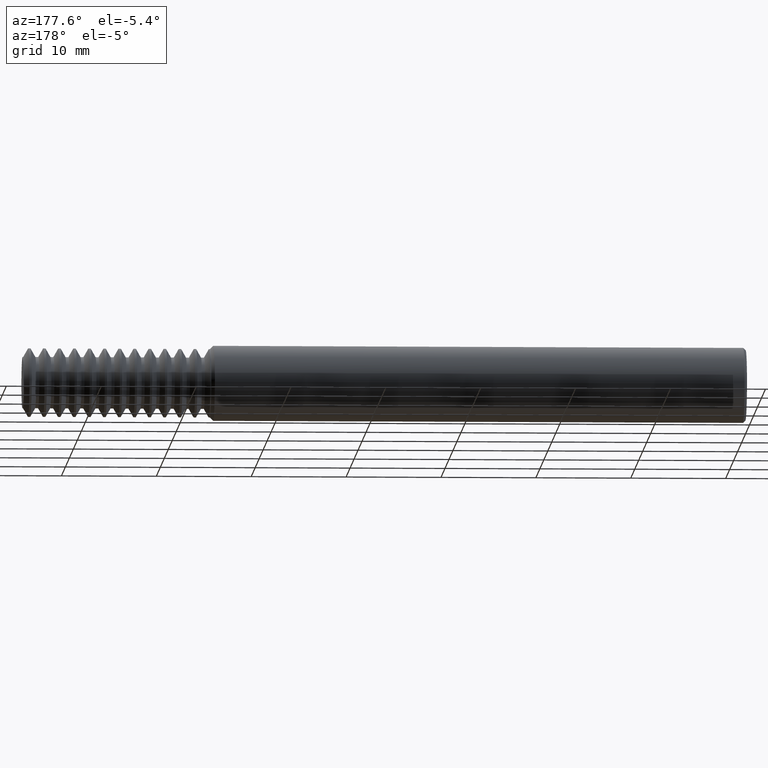
[diagram: clean part render]
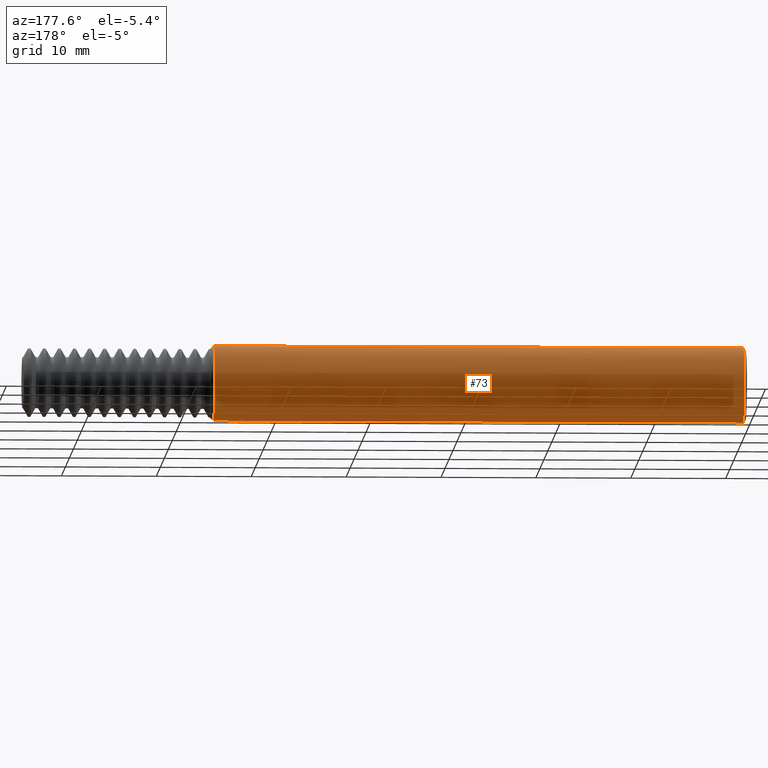
[diagram: same view with one face highlighted and labeled with its STEP entity id]
A machine part, auxiliary view. The second image highlights one B-rep face of the part: STEP entity #73.
In plain terms, the highlighted cylindrical surface (partial cylindrical patch) has radius 3.9649 mm, axis along (1, -0, -0).
Its self-contained STEP definition (entity closure, byte-faithful):
#19 = DIRECTION ( 'NONE',  ( 1.000000000000000000, -0.000000000000000000, -0.000000000000000000 ) ) ;
#73 = ADVANCED_FACE ( 'NONE', ( #1294 ), #448, .T. ) ;
#87 = EDGE_CURVE ( 'NONE', #390, #1171, #2182, .T. ) ;
#108 = DIRECTION ( 'NONE',  ( 0.000000000000000000, 0.000000000000000000, 1.000000000000000000 ) ) ;
#129 = VERTEX_POINT ( 'NONE', #2728 ) ;
#168 = DIRECTION ( 'NONE',  ( 1.000000000000000000, -0.000000000000000000, -0.000000000000000000 ) ) ;
#390 = VERTEX_POINT ( 'NONE', #687 ) ;
#448 = CYLINDRICAL_SURFACE ( 'NONE', #2304, 0.1560999999999999888 ) ;
#687 = CARTESIAN_POINT ( 'NONE',  ( 0.01000000000000071318, 0.000000000000000000, -0.1560999999999999888 ) ) ;
#819 = DIRECTION ( 'NONE',  ( 1.000000000000000000, -0.000000000000000000, -0.000000000000000000 ) ) ;
#834 = CIRCLE ( 'NONE', #2340, 0.1560999999999999888 ) ;
#851 = CARTESIAN_POINT ( 'NONE',  ( 2.208400000000000141, 0.000000000000000000, 0.000000000000000000 ) ) ;
#901 = CARTESIAN_POINT ( 'NONE',  ( 3.000000000000000444, 1.911673653469018068E-17, 0.1560999999999999888 ) ) ;
#950 = CARTESIAN_POINT ( 'NONE',  ( 0.01000000000000071318, 0.000000000000000000, 0.000000000000000000 ) ) ;
#957 = ORIENTED_EDGE ( 'NONE', *, *, #2618, .T. ) ;
#1171 = VERTEX_POINT ( 'NONE', #2522 ) ;
#1177 = DIRECTION ( 'NONE',  ( 1.000000000000000000, -0.000000000000000000, -0.000000000000000000 ) ) ;
#1235 = ORIENTED_EDGE ( 'NONE', *, *, #1956, .F. ) ;
#1294 = FACE_OUTER_BOUND ( 'NONE', #1349, .T. ) ;
#1310 = DIRECTION ( 'NONE',  ( 0.000000000000000000, 0.000000000000000000, -1.000000000000000000 ) ) ;
#1349 = EDGE_LOOP ( 'NONE', ( #957, #1456, #1235, #1719 ) ) ;
#1381 = CARTESIAN_POINT ( 'NONE',  ( 2.208400000000000141, 1.911673653469018068E-17, 0.1560999999999999888 ) ) ;
#1456 = ORIENTED_EDGE ( 'NONE', *, *, #1600, .T. ) ;
#1600 = EDGE_CURVE ( 'NONE', #129, #2052, #1959, .T. ) ;
#1719 = ORIENTED_EDGE ( 'NONE', *, *, #87, .F. ) ;
#1882 = VECTOR ( 'NONE', #168, 39.37007874015748143 ) ;
#1956 = EDGE_CURVE ( 'NONE', #1171, #2052, #834, .T. ) ;
#1959 = LINE ( 'NONE', #901, #2660 ) ;
#1972 = CIRCLE ( 'NONE', #2471, 0.1560999999999999888 ) ;
#2052 = VERTEX_POINT ( 'NONE', #1381 ) ;
#2182 = LINE ( 'NONE', #2625, #1882 ) ;
#2304 = AXIS2_PLACEMENT_3D ( 'NONE', #2822, #2398, #1310 ) ;
#2340 = AXIS2_PLACEMENT_3D ( 'NONE', #851, #819, #2808 ) ;
#2398 = DIRECTION ( 'NONE',  ( 1.000000000000000000, -0.000000000000000000, -0.000000000000000000 ) ) ;
#2471 = AXIS2_PLACEMENT_3D ( 'NONE', #950, #1177, #108 ) ;
#2522 = CARTESIAN_POINT ( 'NONE',  ( 2.208400000000000141, 0.000000000000000000, -0.1560999999999999888 ) ) ;
#2618 = EDGE_CURVE ( 'NONE', #390, #129, #1972, .T. ) ;
#2625 = CARTESIAN_POINT ( 'NONE',  ( 3.000000000000000444, 0.000000000000000000, -0.1560999999999999888 ) ) ;
#2660 = VECTOR ( 'NONE', #19, 39.37007874015748143 ) ;
#2728 = CARTESIAN_POINT ( 'NONE',  ( 0.01000000000000071318, 1.911673653469018068E-17, 0.1560999999999999888 ) ) ;
#2808 = DIRECTION ( 'NONE',  ( 0.000000000000000000, 0.000000000000000000, -1.000000000000000000 ) ) ;
#2822 = CARTESIAN_POINT ( 'NONE',  ( 3.000000000000000444, 0.000000000000000000, 0.000000000000000000 ) ) ;